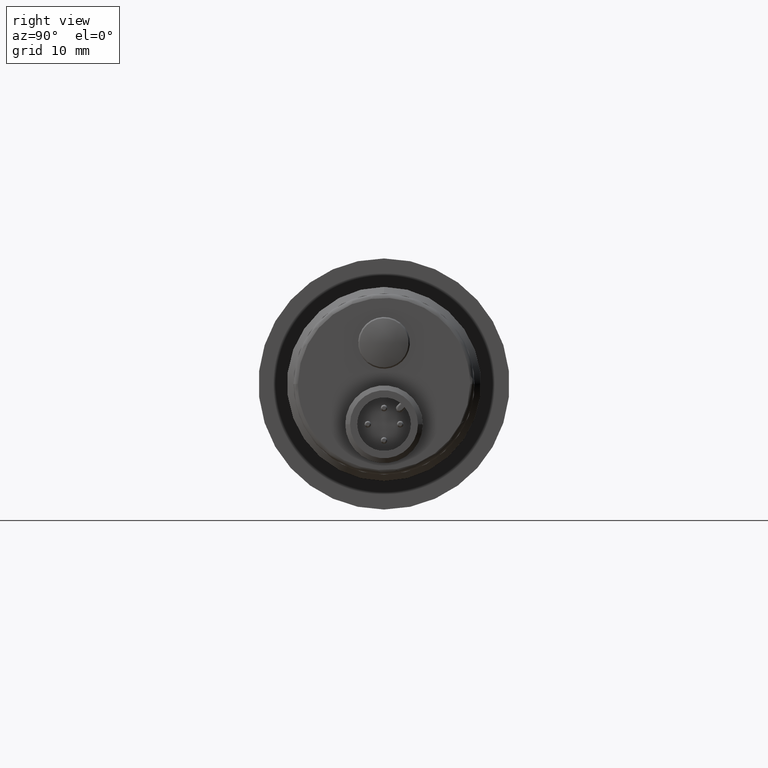
[diagram: clean part render]
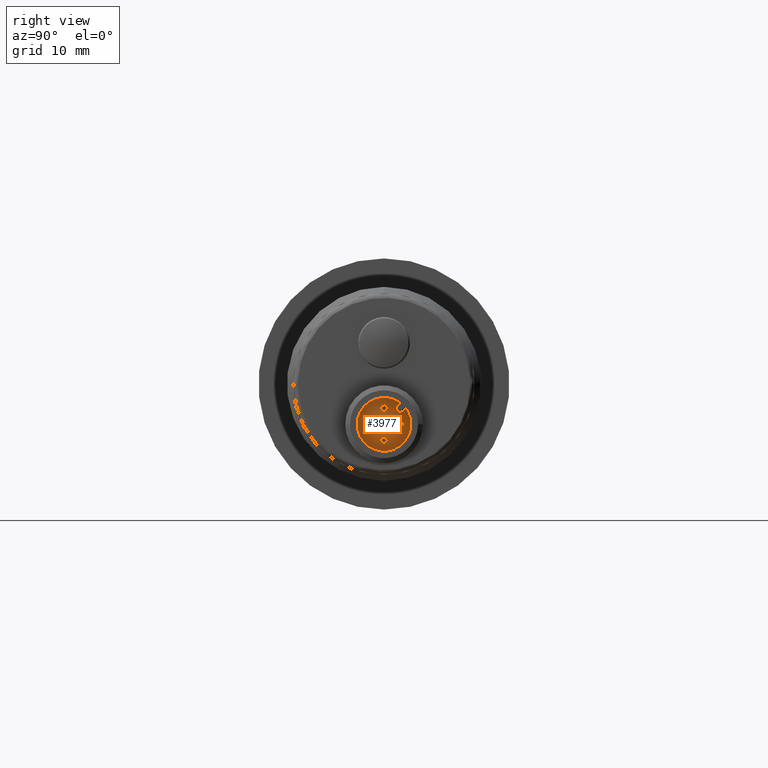
[diagram: same view with one face highlighted and labeled with its STEP entity id]
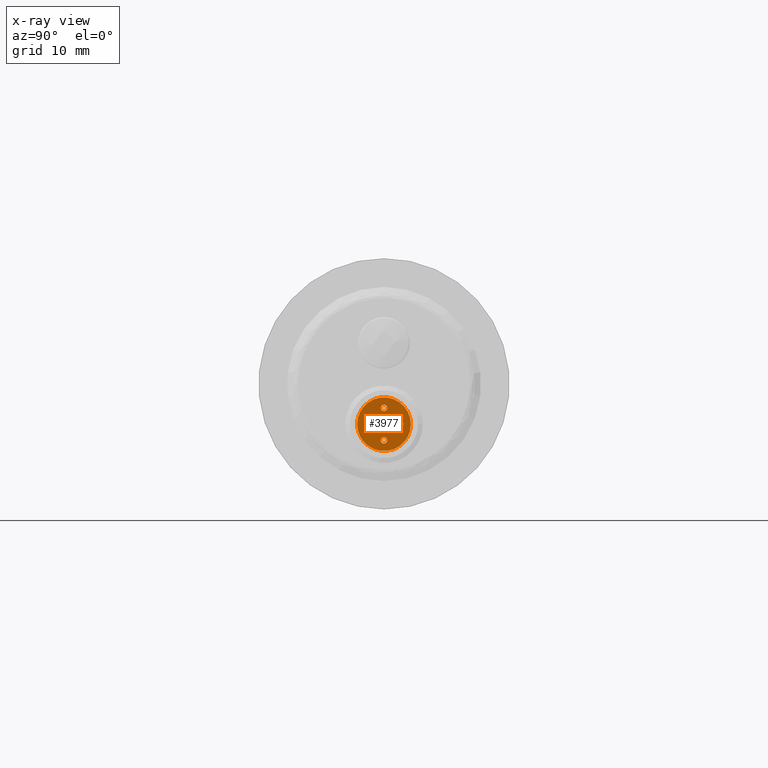
[diagram: x-ray of the same camera — body ghosted, the highlighted face saturated]
A machine part, right view. The second image highlights one B-rep face of the part: STEP entity #3977.
The next image is the same camera in x-ray: the body ghosted, the highlighted face saturated — about 0% of this face is hidden behind the body in this view.
In plain terms, the highlighted planar face has unit normal (-1, -0, -0).
Its self-contained STEP definition (entity closure, byte-faithful):
#13 = DIRECTION ( 'NONE',  ( 0.0000000000000000000, 1.000000000000000000, 0.0000000000000000000 ) ) ;
#54 = CIRCLE ( 'NONE', #3396, 0.01968503937007874000 ) ;
#87 = EDGE_CURVE ( 'NONE', #3865, #3836, #54, .T. ) ;
#112 = EDGE_CURVE ( 'NONE', #3217, #1159, #2554, .T. ) ;
#115 = CARTESIAN_POINT ( 'NONE',  ( 3.488188976377952800, 0.01968503937007852500, -0.3433064958380893600 ) ) ;
#152 = ORIENTED_EDGE ( 'NONE', *, *, #112, .F. ) ;
#163 = VERTEX_POINT ( 'NONE', #2552 ) ;
#286 = DIRECTION ( 'NONE',  ( 1.000000000000000000, 1.962422979740879900E-016, 5.893516859441020000E-017 ) ) ;
#290 = CARTESIAN_POINT ( 'NONE',  ( 3.488188976377952800, -0.01968503937007888900, -0.1464561021373019500 ) ) ;
#326 = VERTEX_POINT ( 'NONE', #290 ) ;
#368 = FACE_BOUND ( 'NONE', #4774, .T. ) ;
#413 = EDGE_CURVE ( 'NONE', #326, #2071, #4942, .T. ) ;
#420 = EDGE_LOOP ( 'NONE', ( #4865, #3775 ) ) ;
#428 = CARTESIAN_POINT ( 'NONE',  ( 3.488188976377952800, -1.504105571153598600E-016, -0.1464561021373019500 ) ) ;
#479 = EDGE_CURVE ( 'NONE', #1159, #3217, #4626, .T. ) ;
#560 = ORIENTED_EDGE ( 'NONE', *, *, #87, .F. ) ;
#653 = CARTESIAN_POINT ( 'NONE',  ( 3.488188976377952800, -0.01968503937007896900, -0.3433064958380893600 ) ) ;
#747 = EDGE_CURVE ( 'NONE', #2071, #326, #4807, .T. ) ;
#836 = CIRCLE ( 'NONE', #2562, 0.01968503937007874000 ) ;
#866 = AXIS2_PLACEMENT_3D ( 'NONE', #2707, #1871, #3039 ) ;
#902 = CIRCLE ( 'NONE', #3620, 0.1633858267716535600 ) ;
#1019 = EDGE_LOOP ( 'NONE', ( #4384, #5026 ) ) ;
#1025 = DIRECTION ( 'NONE',  ( 0.0000000000000000000, 1.000000000000000000, 0.0000000000000000000 ) ) ;
#1157 = EDGE_CURVE ( 'NONE', #4429, #3726, #836, .T. ) ;
#1159 = VERTEX_POINT ( 'NONE', #653 ) ;
#1180 = EDGE_CURVE ( 'NONE', #163, #4270, #902, .T. ) ;
#1204 = DIRECTION ( 'NONE',  ( 1.000000000000000000, 7.255601206556910300E-017, 3.182129986100999800E-017 ) ) ;
#1213 = DIRECTION ( 'NONE',  ( 0.0000000000000000000, 1.000000000000000000, 0.0000000000000000000 ) ) ;
#1361 = CARTESIAN_POINT ( 'NONE',  ( 3.488188976377952800, 0.01968503937007859100, -0.1464561021373019500 ) ) ;
#1421 = DIRECTION ( 'NONE',  ( 0.0000000000000000000, -1.000000000000000000, 0.0000000000000000000 ) ) ;
#1435 = AXIS2_PLACEMENT_3D ( 'NONE', #428, #4722, #1575 ) ;
#1437 = DIRECTION ( 'NONE',  ( 1.000000000000000000, 2.316035094754059900E-016, 9.134976138091340400E-017 ) ) ;
#1443 = CARTESIAN_POINT ( 'NONE',  ( 3.488188976377952800, -0.09842519685039379000, -0.2448812989876957000 ) ) ;
#1575 = DIRECTION ( 'NONE',  ( 0.0000000000000000000, 1.000000000000000000, 0.0000000000000000000 ) ) ;
#1742 = FACE_BOUND ( 'NONE', #420, .T. ) ;
#1753 = ORIENTED_EDGE ( 'NONE', *, *, #1180, .T. ) ;
#1766 = ORIENTED_EDGE ( 'NONE', *, *, #4234, .T. ) ;
#1832 = DIRECTION ( 'NONE',  ( 1.000000000000000000, 1.734723475976810100E-016, 6.123233995736779600E-017 ) ) ;
#1871 = DIRECTION ( 'NONE',  ( 1.000000000000000000, 1.734723475976810100E-016, 6.123233995736779600E-017 ) ) ;
#1928 = CARTESIAN_POINT ( 'NONE',  ( 3.488188976377952800, -0.07874015748031505700, -0.2448812989876957000 ) ) ;
#1971 = ORIENTED_EDGE ( 'NONE', *, *, #479, .F. ) ;
#2045 = AXIS2_PLACEMENT_3D ( 'NONE', #2851, #2800, #4435 ) ;
#2071 = VERTEX_POINT ( 'NONE', #1361 ) ;
#2111 = DIRECTION ( 'NONE',  ( 0.0000000000000000000, 1.000000000000000000, 0.0000000000000000000 ) ) ;
#2133 = DIRECTION ( 'NONE',  ( 1.000000000000000000, 7.255601206556910300E-017, 3.182129986100999800E-017 ) ) ;
#2211 = AXIS2_PLACEMENT_3D ( 'NONE', #1443, #286, #4549 ) ;
#2225 = CARTESIAN_POINT ( 'NONE',  ( 3.488188976377952800, 0.09842519685039362300, -0.2448812989876957000 ) ) ;
#2313 = CARTESIAN_POINT ( 'NONE',  ( 3.488188976377952800, 0.1633858267716533400, -0.2448812989876956700 ) ) ;
#2380 = CARTESIAN_POINT ( 'NONE',  ( 3.488188976377952800, -0.1181102362204725400, -0.2448812989876956700 ) ) ;
#2424 = FACE_BOUND ( 'NONE', #1019, .T. ) ;
#2478 = DIRECTION ( 'NONE',  ( 0.0000000000000000000, 1.000000000000000000, 0.0000000000000000000 ) ) ;
#2552 = CARTESIAN_POINT ( 'NONE',  ( 3.488188976377952800, -0.1633858267716537500, -0.2448812989876957300 ) ) ;
#2554 = CIRCLE ( 'NONE', #4019, 0.01968503937007874700 ) ;
#2562 = AXIS2_PLACEMENT_3D ( 'NONE', #2225, #4971, #1025 ) ;
#2707 = CARTESIAN_POINT ( 'NONE',  ( 3.488188976377952800, -1.989122324859228100E-016, -0.2448812989876957300 ) ) ;
#2797 = FACE_BOUND ( 'NONE', #4628, .T. ) ;
#2800 = DIRECTION ( 'NONE',  ( -1.000000000000000000, -1.734723475976810100E-016, -6.123233995736779600E-017 ) ) ;
#2851 = CARTESIAN_POINT ( 'NONE',  ( 3.488188976377952800, -1.968588628335913700E-016, -0.2448812989876957300 ) ) ;
#3022 = DIRECTION ( 'NONE',  ( 0.0000000000000000000, 1.000000000000000000, 0.0000000000000000000 ) ) ;
#3023 = EDGE_CURVE ( 'NONE', #3836, #3865, #3509, .T. ) ;
#3039 = DIRECTION ( 'NONE',  ( 0.0000000000000000000, -1.000000000000000000, 0.0000000000000000000 ) ) ;
#3111 = AXIS2_PLACEMENT_3D ( 'NONE', #3927, #1204, #13 ) ;
#3217 = VERTEX_POINT ( 'NONE', #115 ) ;
#3228 = PLANE ( 'NONE',  #2045 ) ;
#3259 = DIRECTION ( 'NONE',  ( 1.000000000000000000, 1.962422979740879900E-016, 5.893516859441020000E-017 ) ) ;
#3358 = EDGE_CURVE ( 'NONE', #3726, #4429, #3801, .T. ) ;
#3396 = AXIS2_PLACEMENT_3D ( 'NONE', #4054, #3259, #2111 ) ;
#3509 = CIRCLE ( 'NONE', #2211, 0.01968503937007874000 ) ;
#3566 = CARTESIAN_POINT ( 'NONE',  ( 3.488188976377952800, 0.09842519685039362300, -0.2448812989876957000 ) ) ;
#3620 = AXIS2_PLACEMENT_3D ( 'NONE', #3797, #1832, #1421 ) ;
#3650 = ORIENTED_EDGE ( 'NONE', *, *, #3023, .F. ) ;
#3726 = VERTEX_POINT ( 'NONE', #4212 ) ;
#3775 = ORIENTED_EDGE ( 'NONE', *, *, #413, .F. ) ;
#3797 = CARTESIAN_POINT ( 'NONE',  ( 3.488188976377952800, -1.989122324859228100E-016, -0.2448812989876957300 ) ) ;
#3801 = CIRCLE ( 'NONE', #4162, 0.01968503937007874000 ) ;
#3836 = VERTEX_POINT ( 'NONE', #2380 ) ;
#3865 = VERTEX_POINT ( 'NONE', #1928 ) ;
#3927 = CARTESIAN_POINT ( 'NONE',  ( 3.488188976377952800, -2.235927231948406200E-016, -0.3433064958380893600 ) ) ;
#3928 = CIRCLE ( 'NONE', #866, 0.1633858267716535600 ) ;
#3977 = ADVANCED_FACE ( 'NONE', ( #368, #2424, #2797, #1742, #4463 ), #3228, .F. ) ;
#3983 = CARTESIAN_POINT ( 'NONE',  ( 3.488188976377952800, 0.1181102362204723600, -0.2448812989876957000 ) ) ;
#4019 = AXIS2_PLACEMENT_3D ( 'NONE', #4449, #2133, #2478 ) ;
#4036 = EDGE_LOOP ( 'NONE', ( #1753, #1766 ) ) ;
#4054 = CARTESIAN_POINT ( 'NONE',  ( 3.488188976377952800, -0.09842519685039379000, -0.2448812989876957000 ) ) ;
#4162 = AXIS2_PLACEMENT_3D ( 'NONE', #3566, #4407, #1213 ) ;
#4212 = CARTESIAN_POINT ( 'NONE',  ( 3.488188976377952800, 0.07874015748031487600, -0.2448812989876956700 ) ) ;
#4234 = EDGE_CURVE ( 'NONE', #4270, #163, #3928, .T. ) ;
#4268 = AXIS2_PLACEMENT_3D ( 'NONE', #5052, #1437, #3022 ) ;
#4270 = VERTEX_POINT ( 'NONE', #2313 ) ;
#4384 = ORIENTED_EDGE ( 'NONE', *, *, #1157, .F. ) ;
#4407 = DIRECTION ( 'NONE',  ( 1.000000000000000000, 1.962422979740879900E-016, 5.893516859441020000E-017 ) ) ;
#4429 = VERTEX_POINT ( 'NONE', #3983 ) ;
#4435 = DIRECTION ( 'NONE',  ( 1.734723475976810100E-016, -1.000000000000000000, 0.0000000000000000000 ) ) ;
#4449 = CARTESIAN_POINT ( 'NONE',  ( 3.488188976377952800, -2.235927231948406200E-016, -0.3433064958380893600 ) ) ;
#4463 = FACE_OUTER_BOUND ( 'NONE', #4036, .T. ) ;
#4549 = DIRECTION ( 'NONE',  ( 0.0000000000000000000, 1.000000000000000000, 0.0000000000000000000 ) ) ;
#4626 = CIRCLE ( 'NONE', #3111, 0.01968503937007874700 ) ;
#4628 = EDGE_LOOP ( 'NONE', ( #560, #3650 ) ) ;
#4722 = DIRECTION ( 'NONE',  ( 1.000000000000000000, 2.316035094754059900E-016, 9.134976138091340400E-017 ) ) ;
#4774 = EDGE_LOOP ( 'NONE', ( #152, #1971 ) ) ;
#4807 = CIRCLE ( 'NONE', #1435, 0.01968503937007874000 ) ;
#4865 = ORIENTED_EDGE ( 'NONE', *, *, #747, .F. ) ;
#4942 = CIRCLE ( 'NONE', #4268, 0.01968503937007874000 ) ;
#4971 = DIRECTION ( 'NONE',  ( 1.000000000000000000, 1.962422979740879900E-016, 5.893516859441020000E-017 ) ) ;
#5026 = ORIENTED_EDGE ( 'NONE', *, *, #3358, .F. ) ;
#5052 = CARTESIAN_POINT ( 'NONE',  ( 3.488188976377952800, -1.504105571153598600E-016, -0.1464561021373019500 ) ) ;